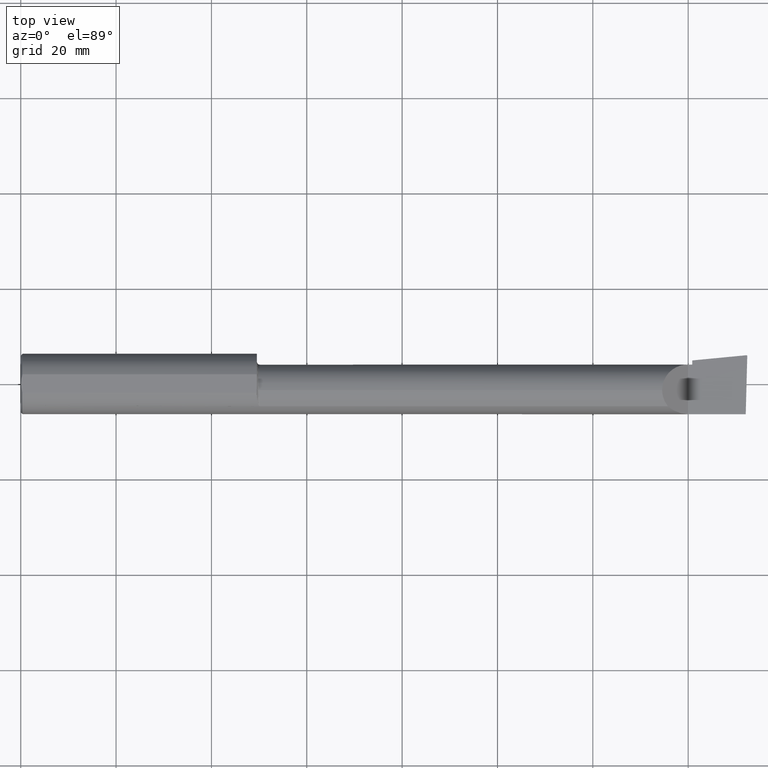
[diagram: clean part render]
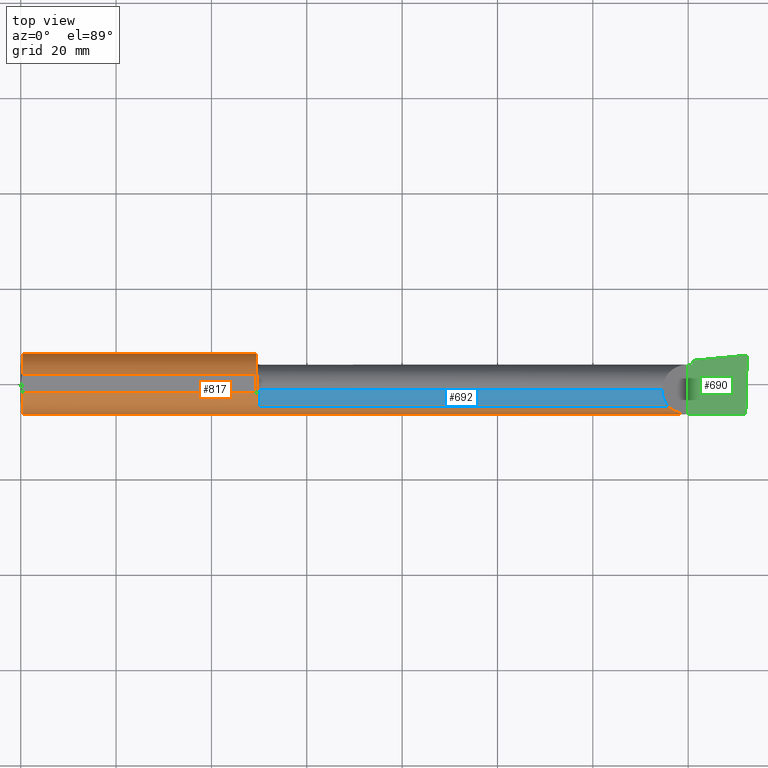
[diagram: same view with three faces highlighted in distinct colors, each labeled with its STEP entity id]
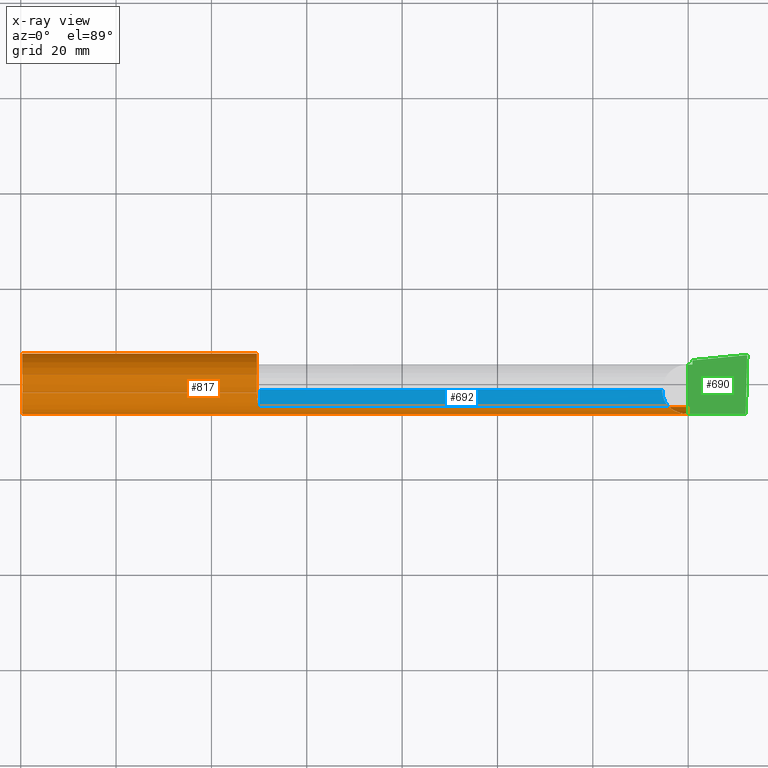
[diagram: x-ray of the same camera — body ghosted, the three highlighted faces saturated]
A machine part, top view with three faces highlighted in distinct colors.
The next image is the same camera in x-ray (body ghosted, the three faces saturated) — at least one of them is partly hidden behind the body in this view.
Their STEP definitions:

[orange] entity #817 — the highlighted cylindrical surface (edge-blend (fillet) strip) has radius 6.3462 mm, axis along (-1, -0, -0).
#9 = CARTESIAN_POINT ( 'NONE',  ( 5.987221270274242002, -0.2498499999999999888, -2.376254392518090263E-16 ) ) ;
#12 = CARTESIAN_POINT ( 'NONE',  ( 1.950000000000001066, -0.09104204635388346567, 0.2329453649474649279 ) ) ;
#16 = EDGE_CURVE ( 'NONE', #847, #443, #46, .T. ) ;
#25 = CARTESIAN_POINT ( 'NONE',  ( 1.951227564404961479, -0.1217005943024311032, -0.2193523119135126487 ) ) ;
#33 = CARTESIAN_POINT ( 'NONE',  ( 1.950000000000000844, 0.07650098038587503646, 0.2378500000000000059 ) ) ;
#43 = B_SPLINE_CURVE_WITH_KNOTS ( 'NONE', 3,
 ( #537, #627, #614, #215, #161, #827, #485, #691, #224, #748, #358, #25, #431, #703 ),
 .UNSPECIFIED., .F., .F.,
 ( 4, 2, 2, 2, 2, 2, 4 ),
 ( 1.967619685288262155E-07, 0.0001090840123077893646, 0.0002179712626470499057, 0.0004357457633255821280, 0.0008712947646826483617, 0.001742392767396787334, 0.003484588772825062460 ),
 .UNSPECIFIED. ) ;
#46 = LINE ( 'NONE', #315, #851 ) ;
#47 = DIRECTION ( 'NONE',  ( 0.000000000000000000, 0.000000000000000000, -1.000000000000000000 ) ) ;
#52 = AXIS2_PLACEMENT_3D ( 'NONE', #387, #96, #47 ) ;
#59 = VERTEX_POINT ( 'NONE', #724 ) ;
#69 = VECTOR ( 'NONE', #463, 39.37007874015748143 ) ;
#72 = DIRECTION ( 'NONE',  ( 1.000000000000000000, 0.000000000000000000, 0.000000000000000000 ) ) ;
#75 = B_SPLINE_CURVE_WITH_KNOTS ( 'NONE', 3,
 ( #306, #12, #556, #753, #154, #547, #688, #503, #770, #438, #619, #220, #749, #352, #423, #552 ),
 .UNSPECIFIED., .F., .F.,
 ( 4, 2, 2, 2, 2, 2, 2, 4 ),
 ( 0.0001034694911878576891, 0.0009591263138367855847, 0.001814783136485713507, 0.002670439959134641647, 0.003098268370459104307, 0.003312182576121339324, 0.003419139678952451845, 0.003526096781783564366 ),
 .UNSPECIFIED. ) ;
#79 = VECTOR ( 'NONE', #848, 39.37007874015748143 ) ;
#96 = DIRECTION ( 'NONE',  ( 1.000000000000000000, 0.000000000000000000, 0.000000000000000000 ) ) ;
#98 = LINE ( 'NONE', #622, #738 ) ;
#100 = DIRECTION ( 'NONE',  ( -1.000000000000000000, -0.000000000000000000, -0.000000000000000000 ) ) ;
#117 = CARTESIAN_POINT ( 'NONE',  ( 5.987221270274242002, -0.2498499999999999888, -2.376254392518090263E-16 ) ) ;
#147 = AXIS2_PLACEMENT_3D ( 'NONE', #477, #276, #613 ) ;
#154 = CARTESIAN_POINT ( 'NONE',  ( 1.952700302592143444, -0.1312404656039941886, 0.2128935242986054743 ) ) ;
#161 = CARTESIAN_POINT ( 'NONE',  ( 1.969285582744839891, -0.1841881072713822121, -0.1688230283719335256 ) ) ;
#163 = CARTESIAN_POINT ( 'NONE',  ( 5.390325100969867833, -0.2278791102234778154, 0.1196748990301315652 ) ) ;
#171 = CARTESIAN_POINT ( 'NONE',  ( 3.760000000000000231, -0.1868028301886797693, -0.1659208399614083285 ) ) ;
#174 = DIRECTION ( 'NONE',  ( -1.000000000000000000, -0.000000000000000000, -0.000000000000000000 ) ) ;
#187 = ORIENTED_EDGE ( 'NONE', *, *, #701, .F. ) ;
#192 = CARTESIAN_POINT ( 'NONE',  ( 5.968492717492765109, -0.1868028301886797693, -0.1659208399614083285 ) ) ;
#193 = CARTESIAN_POINT ( 'NONE',  ( 0.01499999999999999771, 0.07650098038587500870, 0.2378499999999999226 ) ) ;
#194 = VERTEX_POINT ( 'NONE', #207 ) ;
#205 = AXIS2_PLACEMENT_3D ( 'NONE', #323, #244, #583 ) ;
#207 = CARTESIAN_POINT ( 'NONE',  ( 1.950000000000000844, -0.08036415094339827148, 0.2365726648265743803 ) ) ;
#213 = CARTESIAN_POINT ( 'NONE',  ( 1.950000000000000844, -0.08036415094339827148, -0.2365726648265743803 ) ) ;
#215 = CARTESIAN_POINT ( 'NONE',  ( 1.970138573936400572, -0.1849738682364341913, -0.1679602226613238214 ) ) ;
#219 = EDGE_LOOP ( 'NONE', ( #813, #506, #831, #700, #297, #513, #228, #530, #248, #187, #502, #491, #518 ) ) ;
#220 = CARTESIAN_POINT ( 'NONE',  ( 1.969290397284158445, -0.1841927918507063056, 0.1688179232533542906 ) ) ;
#224 = CARTESIAN_POINT ( 'NONE',  ( 1.961285743882608568, -0.1704402150608129995, -0.1827701868778683070 ) ) ;
#228 = ORIENTED_EDGE ( 'NONE', *, *, #603, .F. ) ;
#236 = DIRECTION ( 'NONE',  ( -1.000000000000000000, -0.000000000000000000, -0.000000000000000000 ) ) ;
#244 = DIRECTION ( 'NONE',  ( -1.000000000000000000, -0.000000000000000000, -0.000000000000000000 ) ) ;
#248 = ORIENTED_EDGE ( 'NONE', *, *, #507, .F. ) ;
#267 = CARTESIAN_POINT ( 'NONE',  ( 1.975000000000000755, -0.1868028301886807130, -0.1659208399614071627 ) ) ;
#269 = CARTESIAN_POINT ( 'NONE',  ( 1.950000000000000844, 0.000000000000000000, 0.000000000000000000 ) ) ;
#276 = DIRECTION ( 'NONE',  ( -1.000000000000000000, -0.000000000000000000, -0.000000000000000000 ) ) ;
#278 = FACE_OUTER_BOUND ( 'NONE', #219, .T. ) ;
#288 = CARTESIAN_POINT ( 'NONE',  ( 5.510000000000000675, -0.2498499999999999888, -1.849216666712503932E-16 ) ) ;
#296 =( BOUNDED_CURVE ( )  B_SPLINE_CURVE ( 3, ( #288, #561, #163, #483 ),
 .UNSPECIFIED., .F., .F. ) 
 B_SPLINE_CURVE_WITH_KNOTS ( ( 4, 4 ),
 ( 4.712388980384689674, 5.438654041019565177 ),
 .UNSPECIFIED. ) 
 CURVE ( )  GEOMETRIC_REPRESENTATION_ITEM ( )  RATIONAL_B_SPLINE_CURVE ( ( 1.000000000000000000, 0.9565258159411005323, 0.9565258159411005323, 1.000000000000000000 ) ) 
 REPRESENTATION_ITEM ( '' )  );
#297 = ORIENTED_EDGE ( 'NONE', *, *, #16, .F. ) ;
#306 = CARTESIAN_POINT ( 'NONE',  ( 1.950000000000000844, -0.08036415094339827148, 0.2365726648265743803 ) ) ;
#310 = EDGE_CURVE ( 'NONE', #59, #443, #296, .T. ) ;
#311 = CARTESIAN_POINT ( 'NONE',  ( 5.344079160038591070, -0.1868028301886806020, 0.1659208399614074680 ) ) ;
#315 = CARTESIAN_POINT ( 'NONE',  ( 3.760000000000000231, -0.1868028301886797693, 0.1659208399614083285 ) ) ;
#317 = VERTEX_POINT ( 'NONE', #33 ) ;
#323 = CARTESIAN_POINT ( 'NONE',  ( 0.01499999999999999771, 0.000000000000000000, 0.000000000000000000 ) ) ;
#330 = EDGE_CURVE ( 'NONE', #427, #645, #98, .T. ) ;
#337 = EDGE_CURVE ( 'NONE', #194, #847, #75, .T. ) ;
#352 = CARTESIAN_POINT ( 'NONE',  ( 1.972243150415552204, -0.1862809296394759839, 0.1665094106511973981 ) ) ;
#354 = CIRCLE ( 'NONE', #549, 0.2498499999999999888 ) ;
#358 = CARTESIAN_POINT ( 'NONE',  ( 1.955537042546467541, -0.1495003888705001283, -0.2004994225712662947 ) ) ;
#387 = CARTESIAN_POINT ( 'NONE',  ( 1.950000000000000844, 0.000000000000000000, 0.000000000000000000 ) ) ;
#390 = DIRECTION ( 'NONE',  ( 0.000000000000000000, 0.000000000000000000, 1.000000000000000000 ) ) ;
#395 = LINE ( 'NONE', #527, #79 ) ;
#397 = LINE ( 'NONE', #600, #69 ) ;
#403 = CIRCLE ( 'NONE', #205, 0.2498499999999999888 ) ;
#405 = CARTESIAN_POINT ( 'NONE',  ( 5.973097331270540877, -0.2278791102234775101, -0.1196748990301323562 ) ) ;
#422 = EDGE_CURVE ( 'NONE', #458, #59, #395, .T. ) ;
#423 = CARTESIAN_POINT ( 'NONE',  ( 1.973548866468136653, -0.1868028301907333211, 0.1659208399590964278 ) ) ;
#427 = VERTEX_POINT ( 'NONE', #660 ) ;
#431 = CARTESIAN_POINT ( 'NONE',  ( 1.949999999999990186, -0.1016924291521906082, -0.2293274111511733049 ) ) ;
#438 = CARTESIAN_POINT ( 'NONE',  ( 1.965857071685141788, -0.1799228808997993256, 0.1733778622677434322 ) ) ;
#443 = VERTEX_POINT ( 'NONE', #311 ) ;
#448 = CARTESIAN_POINT ( 'NONE',  ( 0.01499999999998188026, -0.07650098038590467941, 0.2378500000000000059 ) ) ;
#449 = VERTEX_POINT ( 'NONE', #193 ) ;
#458 = VERTEX_POINT ( 'NONE', #117 ) ;
#462 = CYLINDRICAL_SURFACE ( 'NONE', #147, 0.2498499999999999888 ) ;
#463 = DIRECTION ( 'NONE',  ( 1.000000000000000000, 0.000000000000000000, 0.000000000000000000 ) ) ;
#472 =( BOUNDED_CURVE ( )  B_SPLINE_CURVE ( 3, ( #616, #405, #676, #9 ),
 .UNSPECIFIED., .F., .F. ) 
 B_SPLINE_CURVE_WITH_KNOTS ( ( 4, 4 ),
 ( 0.6344818218798038423, 1.360746882514682454 ),
 .UNSPECIFIED. ) 
 CURVE ( )  GEOMETRIC_REPRESENTATION_ITEM ( )  RATIONAL_B_SPLINE_CURVE ( ( 1.000000000000000000, 0.9565258159411000882, 0.9565258159411000882, 1.000000000000000000 ) ) 
 REPRESENTATION_ITEM ( '' )  );
#477 = CARTESIAN_POINT ( 'NONE',  ( 0.000000000000000000, 0.000000000000000000, 0.000000000000000000 ) ) ;
#483 = CARTESIAN_POINT ( 'NONE',  ( 5.344079160038591070, -0.1868028301886806020, 0.1659208399614074680 ) ) ;
#485 = CARTESIAN_POINT ( 'NONE',  ( 1.965875558094660303, -0.1799506819598053198, -0.1733486322212166586 ) ) ;
#491 = ORIENTED_EDGE ( 'NONE', *, *, #734, .F. ) ;
#496 = CIRCLE ( 'NONE', #52, 0.2498499999999999888 ) ;
#502 = ORIENTED_EDGE ( 'NONE', *, *, #546, .T. ) ;
#503 = CARTESIAN_POINT ( 'NONE',  ( 1.961268146151110114, -0.1703904609315293472, 0.1828159088808231636 ) ) ;
#506 = ORIENTED_EDGE ( 'NONE', *, *, #581, .T. ) ;
#507 = EDGE_CURVE ( 'NONE', #693, #645, #564, .T. ) ;
#513 = ORIENTED_EDGE ( 'NONE', *, *, #337, .F. ) ;
#518 = ORIENTED_EDGE ( 'NONE', *, *, #608, .F. ) ;
#524 = CARTESIAN_POINT ( 'NONE',  ( 1.975000000000000755, -0.1868028301886807130, 0.1659208399614071905 ) ) ;
#527 = CARTESIAN_POINT ( 'NONE',  ( 4.678149108241350816E-32, -0.2498499999999999888, 4.235963549344508711E-16 ) ) ;
#530 = ORIENTED_EDGE ( 'NONE', *, *, #330, .T. ) ;
#537 = CARTESIAN_POINT ( 'NONE',  ( 1.975000000000000755, -0.1868028301886807130, -0.1659208399614071627 ) ) ;
#546 = EDGE_CURVE ( 'NONE', #449, #317, #397, .T. ) ;
#547 = CARTESIAN_POINT ( 'NONE',  ( 1.955553274544310272, -0.1495649063853963512, 0.2004446339470372096 ) ) ;
#549 = AXIS2_PLACEMENT_3D ( 'NONE', #269, #72, #606 ) ;
#552 = CARTESIAN_POINT ( 'NONE',  ( 1.975000000000000755, -0.1868028301886807130, 0.1659208399614071905 ) ) ;
#554 = VERTEX_POINT ( 'NONE', #267 ) ;
#556 = CARTESIAN_POINT ( 'NONE',  ( 1.950332084145230738, -0.1014027185340463794, 0.2286231260779305330 ) ) ;
#561 = CARTESIAN_POINT ( 'NONE',  ( 5.448145753305725592, -0.2498499999999999610, 0.06185424669427435490 ) ) ;
#564 = CIRCLE ( 'NONE', #778, 0.2498499999999999888 ) ;
#581 = EDGE_CURVE ( 'NONE', #822, #458, #472, .T. ) ;
#583 = DIRECTION ( 'NONE',  ( 0.000000000000000000, 0.000000000000000000, 1.000000000000000000 ) ) ;
#600 = CARTESIAN_POINT ( 'NONE',  ( 0.000000000000000000, 0.07650098038587500870, 0.2378499999999999226 ) ) ;
#603 = EDGE_CURVE ( 'NONE', #427, #194, #354, .T. ) ;
#606 = DIRECTION ( 'NONE',  ( 0.000000000000000000, 0.000000000000000000, -1.000000000000000000 ) ) ;
#608 = EDGE_CURVE ( 'NONE', #554, #828, #43, .T. ) ;
#613 = DIRECTION ( 'NONE',  ( 0.000000000000000000, 0.000000000000000000, 1.000000000000000000 ) ) ;
#614 = CARTESIAN_POINT ( 'NONE',  ( 1.972232603162241027, -0.1862758070845887126, -0.1665151405181412025 ) ) ;
#616 = CARTESIAN_POINT ( 'NONE',  ( 5.968492717492765109, -0.1868028301886797693, -0.1659208399614083285 ) ) ;
#619 = CARTESIAN_POINT ( 'NONE',  ( 1.967018584423772865, -0.1817363555988628920, 0.1714722504633789391 ) ) ;
#622 = CARTESIAN_POINT ( 'NONE',  ( 0.000000000000000000, -0.07650098038587496707, 0.2378499999999999226 ) ) ;
#627 = CARTESIAN_POINT ( 'NONE',  ( 1.973547768521294987, -0.1868028301886807407, -0.1659208399614073015 ) ) ;
#645 = VERTEX_POINT ( 'NONE', #448 ) ;
#648 = EDGE_CURVE ( 'NONE', #822, #554, #846, .T. ) ;
#660 = CARTESIAN_POINT ( 'NONE',  ( 1.950000000000000844, -0.07650098038590473493, 0.2378500000000000059 ) ) ;
#676 = CARTESIAN_POINT ( 'NONE',  ( 5.979623920331828657, -0.2498499999999999610, -0.06185424669427488920 ) ) ;
#682 = VECTOR ( 'NONE', #100, 39.37007874015748143 ) ;
#688 = CARTESIAN_POINT ( 'NONE',  ( 1.957343635746628285, -0.1582230848692712244, 0.1936715022401938324 ) ) ;
#691 = CARTESIAN_POINT ( 'NONE',  ( 1.962797058507745662, -0.1743943839926601069, -0.1789958554125683776 ) ) ;
#693 = VERTEX_POINT ( 'NONE', #721 ) ;
#700 = ORIENTED_EDGE ( 'NONE', *, *, #310, .T. ) ;
#701 = EDGE_CURVE ( 'NONE', #449, #693, #403, .T. ) ;
#703 = CARTESIAN_POINT ( 'NONE',  ( 1.950000000000000844, -0.08036415094339827148, -0.2365726648265743803 ) ) ;
#721 = CARTESIAN_POINT ( 'NONE',  ( 0.01499999999999999771, 0.000000000000000000, -0.2498499999999999888 ) ) ;
#724 = CARTESIAN_POINT ( 'NONE',  ( 5.510000000000000675, -0.2498499999999999888, -1.849216666712503932E-16 ) ) ;
#734 = EDGE_CURVE ( 'NONE', #828, #317, #496, .T. ) ;
#738 = VECTOR ( 'NONE', #236, 39.37007874015748143 ) ;
#748 = CARTESIAN_POINT ( 'NONE',  ( 1.957341173198634543, -0.1582250006961573308, -0.1936724403215114576 ) ) ;
#749 = CARTESIAN_POINT ( 'NONE',  ( 1.970144309637442026, -0.1849788583324345204, 0.1679547276881052653 ) ) ;
#753 = CARTESIAN_POINT ( 'NONE',  ( 1.951680550596500252, -0.1214972057705746428, 0.2186080375779513585 ) ) ;
#770 = CARTESIAN_POINT ( 'NONE',  ( 1.962758562425230391, -0.1743135686468881840, 0.1790760091940027943 ) ) ;
#777 = CARTESIAN_POINT ( 'NONE',  ( 0.01499999999999999771, 0.000000000000000000, 0.000000000000000000 ) ) ;
#778 = AXIS2_PLACEMENT_3D ( 'NONE', #777, #174, #390 ) ;
#792 = DIRECTION ( 'NONE',  ( 1.000000000000000000, 0.000000000000000000, 0.000000000000000000 ) ) ;
#813 = ORIENTED_EDGE ( 'NONE', *, *, #648, .F. ) ;
#817 = ADVANCED_FACE ( 'NONE', ( #278 ), #462, .T. ) ;
#822 = VERTEX_POINT ( 'NONE', #192 ) ;
#827 = CARTESIAN_POINT ( 'NONE',  ( 1.967016733372315196, -0.1817333077058781998, -0.1714754572696050028 ) ) ;
#828 = VERTEX_POINT ( 'NONE', #213 ) ;
#831 = ORIENTED_EDGE ( 'NONE', *, *, #422, .T. ) ;
#846 = LINE ( 'NONE', #171, #682 ) ;
#847 = VERTEX_POINT ( 'NONE', #524 ) ;
#848 = DIRECTION ( 'NONE',  ( -1.000000000000000000, -0.000000000000000000, -0.000000000000000000 ) ) ;
#851 = VECTOR ( 'NONE', #792, 39.37007874015748143 ) ;

[blue] entity #692 — the highlighted cylindrical surface (edge-blend (fillet) strip) has radius 5.414 mm, axis along (-1, -0, -0).
#5 = AXIS2_PLACEMENT_3D ( 'NONE', #842, #166, #517 ) ;
#14 = EDGE_LOOP ( 'NONE', ( #855, #709, #665, #167 ) ) ;
#16 = EDGE_CURVE ( 'NONE', #847, #443, #46, .T. ) ;
#46 = LINE ( 'NONE', #315, #851 ) ;
#50 = AXIS2_PLACEMENT_3D ( 'NONE', #82, #360, #633 ) ;
#55 = DIRECTION ( 'NONE',  ( -1.000000000000000000, -0.000000000000000000, -0.000000000000000000 ) ) ;
#82 = CARTESIAN_POINT ( 'NONE',  ( 1.975000000000000755, -0.05299999999999998462, 0.000000000000000000 ) ) ;
#110 = CARTESIAN_POINT ( 'NONE',  ( 5.313215146136125000, -0.1485302233682069539, 0.1967848538638752587 ) ) ;
#166 = DIRECTION ( 'NONE',  ( -1.000000000000000000, -0.000000000000000000, -0.000000000000000000 ) ) ;
#167 = ORIENTED_EDGE ( 'NONE', *, *, #16, .T. ) ;
#249 = CARTESIAN_POINT ( 'NONE',  ( 5.296849999999999170, -0.1021668565906575510, 0.2131499999999998951 ) ) ;
#265 = EDGE_CURVE ( 'NONE', #847, #430, #672, .T. ) ;
#301 = CARTESIAN_POINT ( 'NONE',  ( 5.344079160038591070, -0.1868028301886806020, 0.1659208399614074680 ) ) ;
#311 = CARTESIAN_POINT ( 'NONE',  ( 5.344079160038591070, -0.1868028301886806020, 0.1659208399614074680 ) ) ;
#315 = CARTESIAN_POINT ( 'NONE',  ( 3.760000000000000231, -0.1868028301886797693, 0.1659208399614083285 ) ) ;
#316 = CYLINDRICAL_SURFACE ( 'NONE', #5, 0.2131499999999998951 ) ;
#328 = CARTESIAN_POINT ( 'NONE',  ( 1.975000000000000755, -0.05299999999999998462, 0.2131499999999995620 ) ) ;
#360 = DIRECTION ( 'NONE',  ( -1.000000000000000000, -0.000000000000000000, -0.000000000000000000 ) ) ;
#369 = CARTESIAN_POINT ( 'NONE',  ( 5.296849999999999170, -0.05299999999999998462, 0.2131499999999998951 ) ) ;
#430 = VERTEX_POINT ( 'NONE', #328 ) ;
#443 = VERTEX_POINT ( 'NONE', #311 ) ;
#470 = VECTOR ( 'NONE', #55, 39.37007874015748143 ) ;
#517 = DIRECTION ( 'NONE',  ( 0.000000000000000000, 0.000000000000000000, 1.000000000000000000 ) ) ;
#524 = CARTESIAN_POINT ( 'NONE',  ( 1.975000000000000755, -0.1868028301886807130, 0.1659208399614071905 ) ) ;
#633 = DIRECTION ( 'NONE',  ( 0.000000000000000000, 0.000000000000000000, 1.000000000000000000 ) ) ;
#642 = LINE ( 'NONE', #651, #470 ) ;
#646 = FACE_OUTER_BOUND ( 'NONE', #14, .T. ) ;
#650 = VERTEX_POINT ( 'NONE', #656 ) ;
#651 = CARTESIAN_POINT ( 'NONE',  ( 0.000000000000000000, -0.05299999999999998462, 0.2131499999999998951 ) ) ;
#656 = CARTESIAN_POINT ( 'NONE',  ( 5.296849999999999170, -0.05299999999999998462, 0.2131499999999998951 ) ) ;
#662 =( BOUNDED_CURVE ( )  B_SPLINE_CURVE ( 3, ( #301, #110, #249, #369 ),
 .UNSPECIFIED., .F., .T. ) 
 B_SPLINE_CURVE_WITH_KNOTS ( ( 4, 4 ),
 ( 5.604538515477339722, 6.283185307179586232 ),
 .UNSPECIFIED. ) 
 CURVE ( )  GEOMETRIC_REPRESENTATION_ITEM ( )  RATIONAL_B_SPLINE_CURVE ( ( 1.000000000000000000, 0.9619867256453016324, 0.9619867256453016324, 1.000000000000000000 ) ) 
 REPRESENTATION_ITEM ( '' )  );
#665 = ORIENTED_EDGE ( 'NONE', *, *, #265, .F. ) ;
#672 = CIRCLE ( 'NONE', #50, 0.2131499999999995620 ) ;
#692 = ADVANCED_FACE ( 'NONE', ( #646 ), #316, .T. ) ;
#694 = EDGE_CURVE ( 'NONE', #650, #430, #642, .T. ) ;
#709 = ORIENTED_EDGE ( 'NONE', *, *, #694, .T. ) ;
#731 = EDGE_CURVE ( 'NONE', #443, #650, #662, .T. ) ;
#792 = DIRECTION ( 'NONE',  ( 1.000000000000000000, 0.000000000000000000, 0.000000000000000000 ) ) ;
#842 = CARTESIAN_POINT ( 'NONE',  ( 0.000000000000000000, -0.05299999999999998462, 0.000000000000000000 ) ) ;
#847 = VERTEX_POINT ( 'NONE', #524 ) ;
#851 = VECTOR ( 'NONE', #792, 39.37007874015748143 ) ;
#855 = ORIENTED_EDGE ( 'NONE', *, *, #731, .T. ) ;

[green] entity #690 — the highlighted planar face has unit normal (-0, 0, -1).
#11 = EDGE_CURVE ( 'NONE', #371, #85, #113, .T. ) ;
#27 = DIRECTION ( 'NONE',  ( 0.000000000000000000, 1.000000000000000000, 0.000000000000000000 ) ) ;
#58 = LINE ( 'NONE', #668, #444 ) ;
#59 = VERTEX_POINT ( 'NONE', #724 ) ;
#65 = CARTESIAN_POINT ( 'NONE',  ( 5.510000000000000675, 0.1601499999999997648, -1.849216666712503932E-16 ) ) ;
#71 = EDGE_CURVE ( 'NONE', #776, #85, #91, .T. ) ;
#79 = VECTOR ( 'NONE', #848, 39.37007874015748143 ) ;
#85 = VERTEX_POINT ( 'NONE', #262 ) ;
#87 = ORIENTED_EDGE ( 'NONE', *, *, #528, .F. ) ;
#91 =( BOUNDED_CURVE ( )  B_SPLINE_CURVE ( 3, ( #577, #594, #325, #862 ),
 .UNSPECIFIED., .F., .F. ) 
 B_SPLINE_CURVE_WITH_KNOTS ( ( 4, 4 ),
 ( 3.511516179717748543, 3.604018710826264460 ),
 .UNSPECIFIED. ) 
 CURVE ( )  GEOMETRIC_REPRESENTATION_ITEM ( )  RATIONAL_B_SPLINE_CURVE ( ( 1.000000000000000000, 0.9992870672494020834, 0.9992870672494020834, 1.000000000000000000 ) ) 
 REPRESENTATION_ITEM ( '' )  );
#99 = ORIENTED_EDGE ( 'NONE', *, *, #509, .T. ) ;
#113 = LINE ( 'NONE', #589, #318 ) ;
#117 = CARTESIAN_POINT ( 'NONE',  ( 5.987221270274242002, -0.2498499999999999888, -2.376254392518090263E-16 ) ) ;
#125 = DIRECTION ( 'NONE',  ( 0.9953961983671787417, 0.09584575252022461966, -1.099304038737262581E-16 ) ) ;
#151 = CARTESIAN_POINT ( 'NONE',  ( 5.544999999999999929, -0.2500000000000000555, -1.887870261551340527E-16 ) ) ;
#158 = CARTESIAN_POINT ( 'NONE',  ( 5.999806390372789622, 0.2307563466314217493, -2.389946825684086957E-16 ) ) ;
#160 = EDGE_LOOP ( 'NONE', ( #99, #628, #383, #729, #832, #87, #437, #545 ) ) ;
#175 = AXIS2_PLACEMENT_3D ( 'NONE', #441, #436, #717 ) ;
#196 = CARTESIAN_POINT ( 'NONE',  ( 5.999910038027512549, 0.2347144908750987136, -2.397718816852611591E-16 ) ) ;
#203 = CARTESIAN_POINT ( 'NONE',  ( 5.997312560284835392, 0.2374961668063730880, -2.394850192502084978E-16 ) ) ;
#214 = VECTOR ( 'NONE', #27, 39.37007874015748143 ) ;
#262 = CARTESIAN_POINT ( 'NONE',  ( 5.992906680581904233, 0.2374669910246703375, -2.382533214603385385E-16 ) ) ;
#264 = CARTESIAN_POINT ( 'NONE',  ( 5.544999999999999929, 0.1601500000000002366, 4.235963549344515614E-16 ) ) ;
#286 = EDGE_CURVE ( 'NONE', #534, #371, #819, .T. ) ;
#318 = VECTOR ( 'NONE', #125, 39.37007874015748143 ) ;
#325 = CARTESIAN_POINT ( 'NONE',  ( 5.993108609909234552, 0.2374864346074021526, -2.390207398372340352E-16 ) ) ;
#332 = CARTESIAN_POINT ( 'NONE',  ( 4.678149108241350816E-32, 0.1601499999999999035, 4.235963549344508711E-16 ) ) ;
#340 = LINE ( 'NONE', #332, #481 ) ;
#351 = VERTEX_POINT ( 'NONE', #158 ) ;
#371 = VERTEX_POINT ( 'NONE', #515 ) ;
#381 = FACE_OUTER_BOUND ( 'NONE', #160, .T. ) ;
#383 = ORIENTED_EDGE ( 'NONE', *, *, #71, .T. ) ;
#395 = LINE ( 'NONE', #527, #79 ) ;
#422 = EDGE_CURVE ( 'NONE', #458, #59, #395, .T. ) ;
#436 = DIRECTION ( 'NONE',  ( -1.104388423966789920E-16, 0.000000000000000000, -1.000000000000000000 ) ) ;
#437 = ORIENTED_EDGE ( 'NONE', *, *, #536, .F. ) ;
#441 = CARTESIAN_POINT ( 'NONE',  ( 6.000000000000000888, -0.2500000000000000555, -2.390366994456230070E-16 ) ) ;
#444 = VECTOR ( 'NONE', #466, 39.37007874015748854 ) ;
#458 = VERTEX_POINT ( 'NONE', #117 ) ;
#466 = DIRECTION ( 'NONE',  ( 0.02617694830788138902, 0.9996573249755570378, -2.848015055786208837E-18 ) ) ;
#481 = VECTOR ( 'NONE', #810, 39.37007874015748143 ) ;
#509 = EDGE_CURVE ( 'NONE', #458, #351, #58, .T. ) ;
#515 = CARTESIAN_POINT ( 'NONE',  ( 5.544999999999999929, 0.1943384830701263277, 4.235963642129409360E-16 ) ) ;
#527 = CARTESIAN_POINT ( 'NONE',  ( 4.678149108241350816E-32, -0.2498499999999999888, 4.235963549344508711E-16 ) ) ;
#528 = EDGE_CURVE ( 'NONE', #567, #534, #340, .T. ) ;
#534 = VERTEX_POINT ( 'NONE', #264 ) ;
#536 = EDGE_CURVE ( 'NONE', #59, #567, #680, .T. ) ;
#545 = ORIENTED_EDGE ( 'NONE', *, *, #422, .F. ) ;
#560 =( BOUNDED_CURVE ( )  B_SPLINE_CURVE ( 3, ( #797, #196, #203, #609 ),
 .UNSPECIFIED., .F., .F. ) 
 B_SPLINE_CURVE_WITH_KNOTS ( ( 4, 4 ),
 ( 1.953092279228488826, 3.511516179717748543 ),
 .UNSPECIFIED. ) 
 CURVE ( )  GEOMETRIC_REPRESENTATION_ITEM ( )  RATIONAL_B_SPLINE_CURVE ( ( 1.000000000000000000, 0.8076450242550405889, 0.8076450242550405889, 1.000000000000000000 ) ) 
 REPRESENTATION_ITEM ( '' )  );
#566 = CARTESIAN_POINT ( 'NONE',  ( 5.993512870449325014, 0.2374961668063730880, -2.390366994456230070E-16 ) ) ;
#567 = VERTEX_POINT ( 'NONE', #65 ) ;
#573 = EDGE_CURVE ( 'NONE', #351, #776, #560, .T. ) ;
#577 = CARTESIAN_POINT ( 'NONE',  ( 5.993512870449325014, 0.2374961668063730880, -2.390366994456230070E-16 ) ) ;
#589 = CARTESIAN_POINT ( 'NONE',  ( 2.976291640117795900, -0.05299999999999998462, 9.489815156492843319E-17 ) ) ;
#594 = CARTESIAN_POINT ( 'NONE',  ( 5.993310817358688425, 0.2374961668063731157, -2.390430713938757299E-16 ) ) ;
#609 = CARTESIAN_POINT ( 'NONE',  ( 5.993512870449325014, 0.2374961668063730880, -2.390366994456230070E-16 ) ) ;
#628 = ORIENTED_EDGE ( 'NONE', *, *, #573, .T. ) ;
#668 = CARTESIAN_POINT ( 'NONE',  ( 5.987226101480008111, -0.2496655036952226958, -2.376259648801824953E-16 ) ) ;
#680 = LINE ( 'NONE', #739, #834 ) ;
#690 = ADVANCED_FACE ( 'NONE', ( #381 ), #768, .F. ) ;
#717 = DIRECTION ( 'NONE',  ( -1.000000000000000000, 0.000000000000000000, 1.104388423966789920E-16 ) ) ;
#724 = CARTESIAN_POINT ( 'NONE',  ( 5.510000000000000675, -0.2498499999999999888, -1.849216666712503932E-16 ) ) ;
#729 = ORIENTED_EDGE ( 'NONE', *, *, #11, .F. ) ;
#739 = CARTESIAN_POINT ( 'NONE',  ( 5.510000000000000675, -0.2500000000000000555, -1.849216666712503932E-16 ) ) ;
#768 = PLANE ( 'NONE',  #175 ) ;
#776 = VERTEX_POINT ( 'NONE', #566 ) ;
#797 = CARTESIAN_POINT ( 'NONE',  ( 5.999806390372789622, 0.2307563466314217493, -2.389946825684086957E-16 ) ) ;
#810 = DIRECTION ( 'NONE',  ( 1.000000000000000000, 0.000000000000000000, 0.000000000000000000 ) ) ;
#819 = LINE ( 'NONE', #151, #214 ) ;
#832 = ORIENTED_EDGE ( 'NONE', *, *, #286, .F. ) ;
#834 = VECTOR ( 'NONE', #865, 39.37007874015748143 ) ;
#848 = DIRECTION ( 'NONE',  ( -1.000000000000000000, -0.000000000000000000, -0.000000000000000000 ) ) ;
#862 = CARTESIAN_POINT ( 'NONE',  ( 5.992906680581904233, 0.2374669910246703375, -2.382533214603385385E-16 ) ) ;
#865 = DIRECTION ( 'NONE',  ( -0.000000000000000000, 1.000000000000000000, -0.000000000000000000 ) ) ;